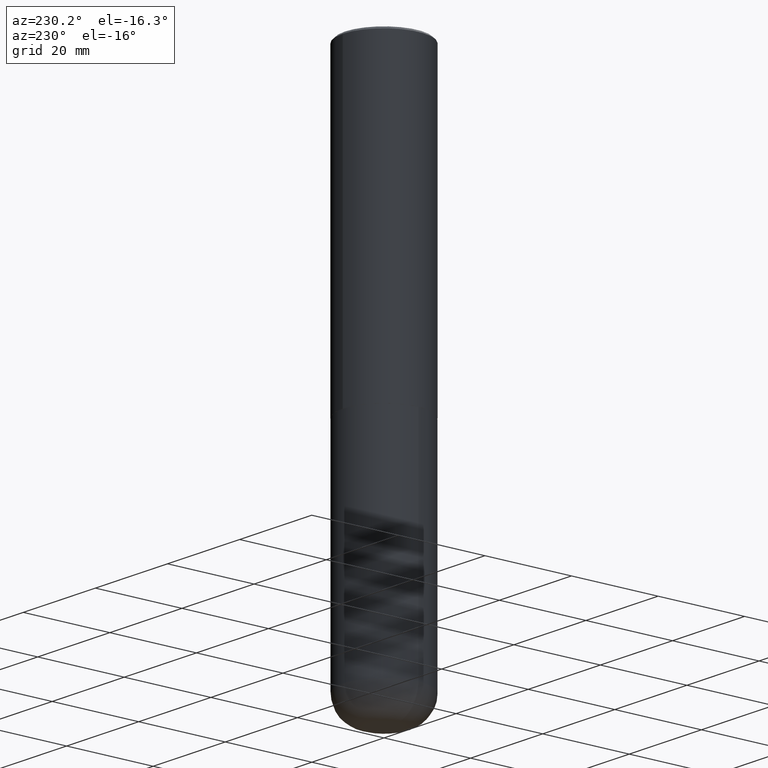
[diagram: clean part render]
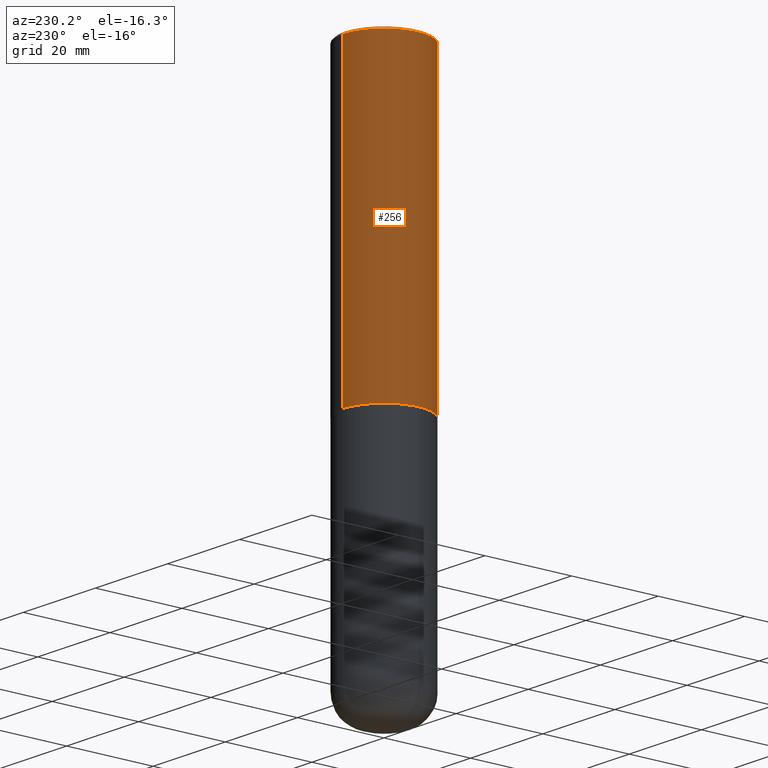
[diagram: same view with one face highlighted and labeled with its STEP entity id]
A machine part, auxiliary view. The second image highlights one B-rep face of the part: STEP entity #256.
In plain terms, the highlighted cylindrical surface (partial cylindrical patch) has radius 9.525 mm, axis along (-0, 0, 1).
Its self-contained STEP definition (entity closure, byte-faithful):
#6 = DIRECTION ( 'NONE',  ( -2.446040391741596606E-29, 3.490662795793665557E-15, 1.000000000000000000 ) ) ;
#26 = CARTESIAN_POINT ( 'NONE',  ( 2.618611004132350411E-15, 0.3749999999999999445, -0.02000000000000139513 ) ) ;
#42 = DIRECTION ( 'NONE',  ( -6.982962677686265922E-15, -1.000000000000000000, 3.494488891895536035E-15 ) ) ;
#50 = ORIENTED_EDGE ( 'NONE', *, *, #331, .T. ) ;
#53 = CARTESIAN_POINT ( 'NONE',  ( 0.000000000000000000, 0.000000000000000000, 0.000000000000000000 ) ) ;
#65 = CYLINDRICAL_SURFACE ( 'NONE', #403, 0.3750000000000002220 ) ;
#67 = DIRECTION ( 'NONE',  ( -2.446040391741596606E-29, 3.490662795793665557E-15, 1.000000000000000000 ) ) ;
#71 = CIRCLE ( 'NONE', #179, 0.3750000000000000555 ) ;
#76 = ORIENTED_EDGE ( 'NONE', *, *, #370, .F. ) ;
#96 = FACE_OUTER_BOUND ( 'NONE', #111, .T. ) ;
#101 = VERTEX_POINT ( 'NONE', #26 ) ;
#111 = EDGE_LOOP ( 'NONE', ( #252, #211, #50, #76 ) ) ;
#132 = DIRECTION ( 'NONE',  ( -6.982962677686265922E-15, -1.000000000000000000, 2.913971193241877611E-15 ) ) ;
#146 = VERTEX_POINT ( 'NONE', #192 ) ;
#148 = VECTOR ( 'NONE', #6, 39.37007874015748143 ) ;
#169 = EDGE_CURVE ( 'NONE', #175, #101, #381, .T. ) ;
#175 = VERTEX_POINT ( 'NONE', #355 ) ;
#179 = AXIS2_PLACEMENT_3D ( 'NONE', #210, #67, #42 ) ;
#186 = EDGE_CURVE ( 'NONE', #175, #219, #290, .T. ) ;
#189 = CARTESIAN_POINT ( 'NONE',  ( 2.664535259100376880E-15, 0.3750000000000002220, -1.308998548422625521E-15 ) ) ;
#192 = CARTESIAN_POINT ( 'NONE',  ( -2.572686749164323547E-15, -0.3750000000000001110, -0.01999999999999877570 ) ) ;
#194 = DIRECTION ( 'NONE',  ( -2.446040391741596606E-29, 3.490662795793665557E-15, 1.000000000000000000 ) ) ;
#210 = CARTESIAN_POINT ( 'NONE',  ( 4.892080783483214581E-31, -6.981325591587361238E-17, -0.02000000000000008715 ) ) ;
#211 = ORIENTED_EDGE ( 'NONE', *, *, #186, .T. ) ;
#219 = VERTEX_POINT ( 'NONE', #227 ) ;
#227 = CARTESIAN_POINT ( 'NONE',  ( -2.618611004132284935E-15, -0.3750000000000099920, -2.748999999999999222 ) ) ;
#233 = AXIS2_PLACEMENT_3D ( 'NONE', #316, #284, #132 ) ;
#237 = LINE ( 'NONE', #392, #148 ) ;
#252 = ORIENTED_EDGE ( 'NONE', *, *, #169, .F. ) ;
#255 = DIRECTION ( 'NONE',  ( -6.982962677686266711E-15, -1.000000000000000000, 3.490662795793665951E-15 ) ) ;
#256 = ADVANCED_FACE ( 'NONE', ( #96 ), #65, .T. ) ;
#284 = DIRECTION ( 'NONE',  ( -2.446040391741596606E-29, 3.490662795793665557E-15, 1.000000000000000000 ) ) ;
#290 = CIRCLE ( 'NONE', #233, 0.3750000000000003886 ) ;
#314 = DIRECTION ( 'NONE',  ( -2.446040391741596606E-29, 3.490662795793665557E-15, 1.000000000000000000 ) ) ;
#316 = CARTESIAN_POINT ( 'NONE',  ( 6.724165036897648492E-29, -9.595832025636787455E-15, -2.749000000000000110 ) ) ;
#322 = VECTOR ( 'NONE', #194, 39.37007874015748143 ) ;
#331 = EDGE_CURVE ( 'NONE', #219, #146, #237, .T. ) ;
#355 = CARTESIAN_POINT ( 'NONE',  ( 2.664535259100411196E-15, 0.3749999999999907296, -2.749000000000000998 ) ) ;
#370 = EDGE_CURVE ( 'NONE', #101, #146, #71, .T. ) ;
#381 = LINE ( 'NONE', #189, #322 ) ;
#392 = CARTESIAN_POINT ( 'NONE',  ( -2.618611004132351594E-15, -0.3750000000000002220, 1.308998548422625521E-15 ) ) ;
#403 = AXIS2_PLACEMENT_3D ( 'NONE', #53, #314, #255 ) ;